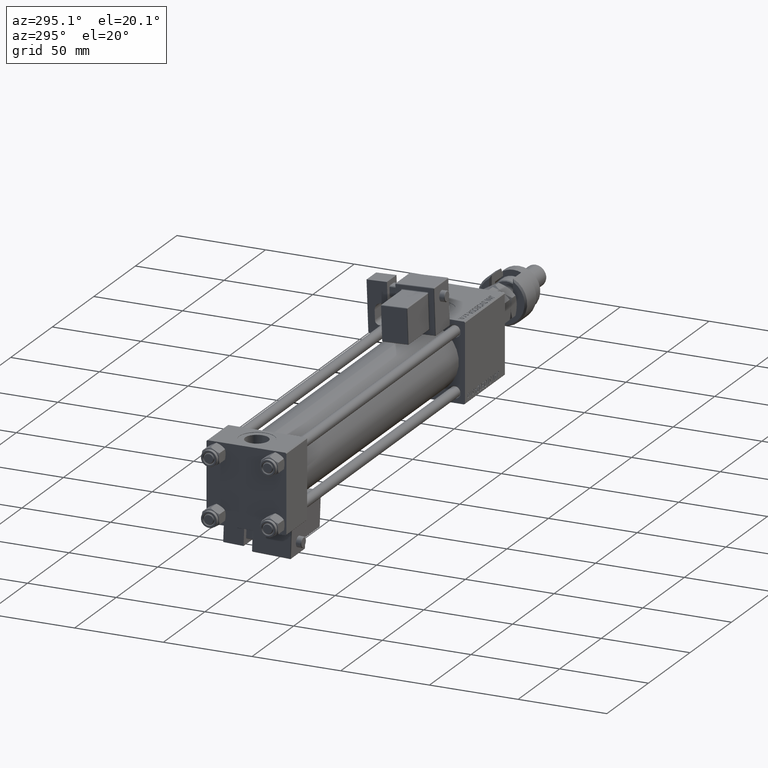
[diagram: clean part render]
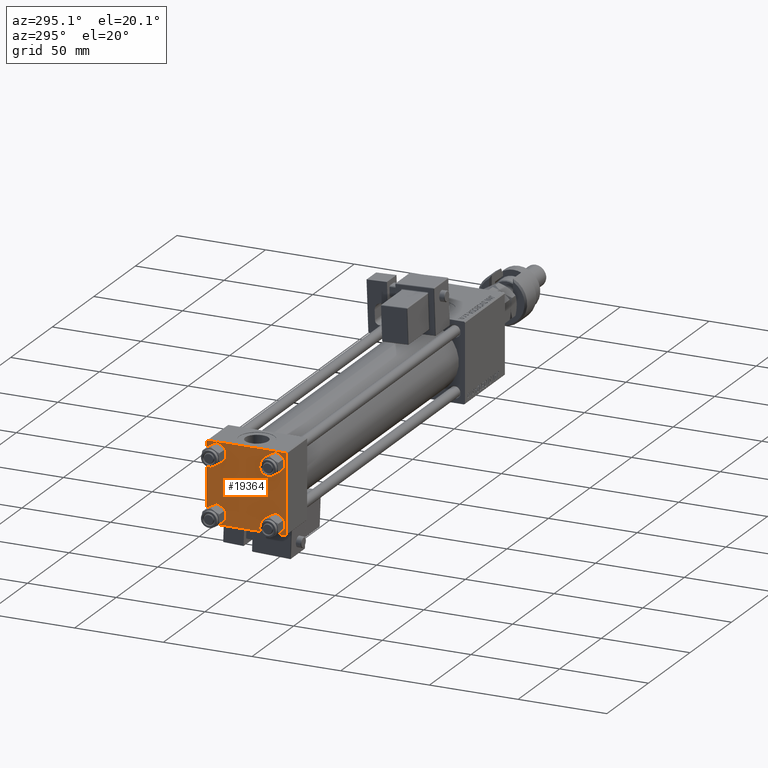
[diagram: same view with one face highlighted and labeled with its STEP entity id]
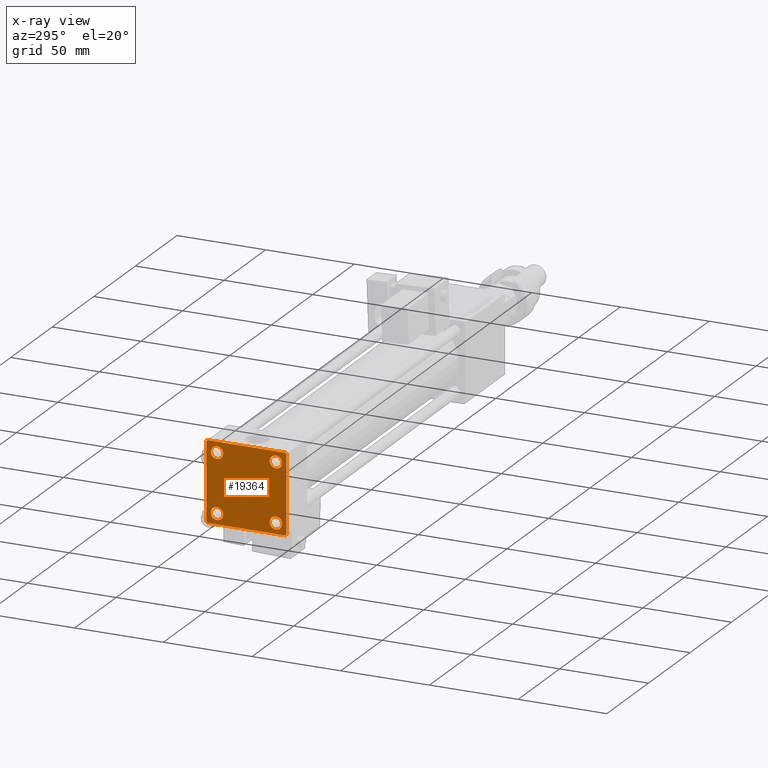
[diagram: x-ray of the same camera — body ghosted, the highlighted face saturated]
A machine part, auxiliary view. The second image highlights one B-rep face of the part: STEP entity #19364.
The next image is the same camera in x-ray: the body ghosted, the highlighted face saturated — about 0% of this face is hidden behind the body in this view.
In plain terms, the highlighted planar face has unit normal (-1, 0, 0).
Its self-contained STEP definition (entity closure, byte-faithful):
#97 = VECTOR ( 'NONE', #16491, 1000.000000000000000 ) ;
#428 = FACE_BOUND ( 'NONE', #8487, .T. ) ;
#598 = CARTESIAN_POINT ( 'NONE',  ( 0.000000000000000000, -16.59999999999999076, 20.10000000000000853 ) ) ;
#1113 = CARTESIAN_POINT ( 'NONE',  ( 0.000000000000000000, -22.50000000000000000, -21.99999999999997158 ) ) ;
#1142 = DIRECTION ( 'NONE',  ( 0.000000000000000000, -1.000000000000000000, -7.709882115452476934E-17 ) ) ;
#1306 = EDGE_CURVE ( 'NONE', #41921, #9362, #52710, .T. ) ;
#1819 = ORIENTED_EDGE ( 'NONE', *, *, #8839, .F. ) ;
#1851 = CARTESIAN_POINT ( 'NONE',  ( 0.000000000000000000, -16.59999999999999076, -20.10000000000000497 ) ) ;
#2051 = CIRCLE ( 'NONE', #52148, 3.499999999999996003 ) ;
#2531 = AXIS2_PLACEMENT_3D ( 'NONE', #6117, #23202, #53214 ) ;
#2540 = CIRCLE ( 'NONE', #9646, 3.499999999999996003 ) ;
#2605 = VERTEX_POINT ( 'NONE', #14808 ) ;
#3458 = VECTOR ( 'NONE', #47914, 1000.000000000000000 ) ;
#4612 = CARTESIAN_POINT ( 'NONE',  ( 0.000000000000000000, -16.59999999999999076, 13.10000000000001030 ) ) ;
#4826 = ORIENTED_EDGE ( 'NONE', *, *, #42773, .T. ) ;
#4883 = DIRECTION ( 'NONE',  ( 0.000000000000000000, -0.7071067811865426878, 0.7071067811865524577 ) ) ;
#4917 = FACE_BOUND ( 'NONE', #39785, .T. ) ;
#5518 = DIRECTION ( 'NONE',  ( 1.000000000000000000, -0.000000000000000000, 0.000000000000000000 ) ) ;
#5981 = CARTESIAN_POINT ( 'NONE',  ( 0.000000000000000000, 16.59999999999999787, -16.60000000000000497 ) ) ;
#6117 = CARTESIAN_POINT ( 'NONE',  ( 0.000000000000000000, 16.59999999999999787, 16.60000000000000497 ) ) ;
#6694 = DIRECTION ( 'NONE',  ( 1.000000000000000000, -0.000000000000000000, 0.000000000000000000 ) ) ;
#6784 = AXIS2_PLACEMENT_3D ( 'NONE', #33765, #52274, #9929 ) ;
#6946 = DIRECTION ( 'NONE',  ( 0.000000000000000000, 0.7071067811865474617, -0.7071067811865474617 ) ) ;
#7906 = ORIENTED_EDGE ( 'NONE', *, *, #26821, .T. ) ;
#7988 = EDGE_CURVE ( 'NONE', #41921, #46349, #28220, .T. ) ;
#8307 = CARTESIAN_POINT ( 'NONE',  ( 0.000000000000000000, 16.59999999999999787, 16.60000000000000497 ) ) ;
#8444 = CIRCLE ( 'NONE', #12016, 3.499999999999996003 ) ;
#8487 = EDGE_LOOP ( 'NONE', ( #55128, #42108 ) ) ;
#8839 = EDGE_CURVE ( 'NONE', #38085, #25041, #37790, .T. ) ;
#9362 = VERTEX_POINT ( 'NONE', #23086 ) ;
#9536 = CARTESIAN_POINT ( 'NONE',  ( 0.000000000000000000, 22.50000000000000000, 21.99999999999999645 ) ) ;
#9646 = AXIS2_PLACEMENT_3D ( 'NONE', #43910, #5518, #39980 ) ;
#9670 = ORIENTED_EDGE ( 'NONE', *, *, #1306, .F. ) ;
#9844 = CIRCLE ( 'NONE', #10768, 3.499999999999996003 ) ;
#9929 = DIRECTION ( 'NONE',  ( -0.000000000000000000, 0.000000000000000000, 1.000000000000000000 ) ) ;
#10565 = CIRCLE ( 'NONE', #13273, 3.499999999999996003 ) ;
#10768 = AXIS2_PLACEMENT_3D ( 'NONE', #8307, #20651, #46160 ) ;
#10854 = VERTEX_POINT ( 'NONE', #42837 ) ;
#11421 = CARTESIAN_POINT ( 'NONE',  ( 0.000000000000000000, 22.24999999999999645, 22.24999999999999645 ) ) ;
#12016 = AXIS2_PLACEMENT_3D ( 'NONE', #45091, #6694, #53772 ) ;
#12227 = CARTESIAN_POINT ( 'NONE',  ( 0.000000000000000000, 22.50000000000000000, 22.50000000000000355 ) ) ;
#13169 = EDGE_CURVE ( 'NONE', #10854, #25107, #52069, .T. ) ;
#13273 = AXIS2_PLACEMENT_3D ( 'NONE', #49714, #45227, #45784 ) ;
#13603 = FACE_BOUND ( 'NONE', #50545, .T. ) ;
#13840 = LINE ( 'NONE', #17503, #51501 ) ;
#14561 = VERTEX_POINT ( 'NONE', #20641 ) ;
#14716 = CARTESIAN_POINT ( 'NONE',  ( 0.000000000000000000, 21.99999999999999289, 22.50000000000000355 ) ) ;
#14808 = CARTESIAN_POINT ( 'NONE',  ( 0.000000000000000000, 16.59999999999999787, 13.10000000000000675 ) ) ;
#14986 = ORIENTED_EDGE ( 'NONE', *, *, #21734, .T. ) ;
#15364 = EDGE_CURVE ( 'NONE', #48222, #36475, #2051, .T. ) ;
#16438 = DIRECTION ( 'NONE',  ( 0.000000000000000000, 0.000000000000000000, -1.000000000000000000 ) ) ;
#16491 = DIRECTION ( 'NONE',  ( 0.000000000000000000, 0.000000000000000000, -1.000000000000000000 ) ) ;
#16699 = PLANE ( 'NONE',  #6784 ) ;
#17503 = CARTESIAN_POINT ( 'NONE',  ( 0.000000000000000000, -22.25000000000014566, -22.24999999999984013 ) ) ;
#17607 = DIRECTION ( 'NONE',  ( -0.000000000000000000, 0.7071067811865525687, 0.7071067811865425767 ) ) ;
#17960 = EDGE_LOOP ( 'NONE', ( #37653, #19823, #36611, #4826, #1819, #7906, #9670, #20603 ) ) ;
#18754 = CARTESIAN_POINT ( 'NONE',  ( 0.000000000000000000, 22.50000000000000000, -22.49999999999999645 ) ) ;
#19043 = CARTESIAN_POINT ( 'NONE',  ( 0.000000000000000000, 16.59999999999999787, -13.10000000000000675 ) ) ;
#19364 = ADVANCED_FACE ( 'NONE', ( #51999, #428, #4917, #13603, #30670 ), #16699, .T. ) ;
#19823 = ORIENTED_EDGE ( 'NONE', *, *, #43229, .T. ) ;
#19936 = VERTEX_POINT ( 'NONE', #37284 ) ;
#20512 = ORIENTED_EDGE ( 'NONE', *, *, #33157, .T. ) ;
#20603 = ORIENTED_EDGE ( 'NONE', *, *, #7988, .T. ) ;
#20641 = CARTESIAN_POINT ( 'NONE',  ( 0.000000000000000000, -21.99999999999997158, -22.50000000000000711 ) ) ;
#20651 = DIRECTION ( 'NONE',  ( 1.000000000000000000, -0.000000000000000000, 0.000000000000000000 ) ) ;
#20933 = VERTEX_POINT ( 'NONE', #27205 ) ;
#21134 = EDGE_CURVE ( 'NONE', #52709, #25137, #2540, .T. ) ;
#21734 = EDGE_CURVE ( 'NONE', #36475, #48222, #10565, .T. ) ;
#22793 = DIRECTION ( 'NONE',  ( 0.000000000000000000, 0.000000000000000000, 1.000000000000000000 ) ) ;
#23086 = CARTESIAN_POINT ( 'NONE',  ( 0.000000000000000000, -21.99999999999997868, 22.50000000000000000 ) ) ;
#23202 = DIRECTION ( 'NONE',  ( 1.000000000000000000, -0.000000000000000000, 0.000000000000000000 ) ) ;
#24346 = ORIENTED_EDGE ( 'NONE', *, *, #13169, .T. ) ;
#24534 = ORIENTED_EDGE ( 'NONE', *, *, #15364, .T. ) ;
#25041 = VERTEX_POINT ( 'NONE', #1113 ) ;
#25107 = VERTEX_POINT ( 'NONE', #19043 ) ;
#25137 = VERTEX_POINT ( 'NONE', #36124 ) ;
#26821 = EDGE_CURVE ( 'NONE', #38085, #9362, #46771, .T. ) ;
#26964 = EDGE_CURVE ( 'NONE', #46349, #44775, #28748, .T. ) ;
#27205 = CARTESIAN_POINT ( 'NONE',  ( 0.000000000000000000, 21.99999999999999289, -22.49999999999999645 ) ) ;
#28220 = LINE ( 'NONE', #11421, #37665 ) ;
#28736 = DIRECTION ( 'NONE',  ( 1.000000000000000000, -0.000000000000000000, 0.000000000000000000 ) ) ;
#28748 = LINE ( 'NONE', #12227, #44838 ) ;
#29556 = CARTESIAN_POINT ( 'NONE',  ( 0.000000000000000000, 16.59999999999999787, -16.60000000000000497 ) ) ;
#29578 = EDGE_CURVE ( 'NONE', #2605, #19936, #9844, .T. ) ;
#29982 = VECTOR ( 'NONE', #50454, 1000.000000000000000 ) ;
#30670 = FACE_OUTER_BOUND ( 'NONE', #17960, .T. ) ;
#31925 = DIRECTION ( 'NONE',  ( 1.000000000000000000, -0.000000000000000000, 0.000000000000000000 ) ) ;
#33157 = EDGE_CURVE ( 'NONE', #25107, #10854, #34207, .T. ) ;
#33765 = CARTESIAN_POINT ( 'NONE',  ( 0.000000000000000000, 0.000000000000000000, 0.000000000000000000 ) ) ;
#34207 = CIRCLE ( 'NONE', #48519, 3.499999999999996003 ) ;
#36124 = CARTESIAN_POINT ( 'NONE',  ( 0.000000000000000000, -16.59999999999999076, -13.10000000000001030 ) ) ;
#36475 = VERTEX_POINT ( 'NONE', #4612 ) ;
#36611 = ORIENTED_EDGE ( 'NONE', *, *, #50763, .T. ) ;
#37188 = ORIENTED_EDGE ( 'NONE', *, *, #29578, .T. ) ;
#37284 = CARTESIAN_POINT ( 'NONE',  ( 0.000000000000000000, 16.59999999999999787, 20.10000000000000142 ) ) ;
#37653 = ORIENTED_EDGE ( 'NONE', *, *, #26964, .T. ) ;
#37665 = VECTOR ( 'NONE', #6946, 1000.000000000000114 ) ;
#37790 = LINE ( 'NONE', #54882, #97 ) ;
#38085 = VERTEX_POINT ( 'NONE', #41448 ) ;
#39540 = CARTESIAN_POINT ( 'NONE',  ( 0.000000000000000000, 22.50000000000000000, 22.50000000000000355 ) ) ;
#39785 = EDGE_LOOP ( 'NONE', ( #20512, #24346 ) ) ;
#39980 = DIRECTION ( 'NONE',  ( 0.000000000000000000, 0.000000000000000000, 1.000000000000000000 ) ) ;
#40086 = CARTESIAN_POINT ( 'NONE',  ( 0.000000000000000000, -16.59999999999999076, 16.60000000000000853 ) ) ;
#40113 = EDGE_LOOP ( 'NONE', ( #24534, #14986 ) ) ;
#40180 = DIRECTION ( 'NONE',  ( 1.000000000000000000, -0.000000000000000000, 0.000000000000000000 ) ) ;
#40190 = ORIENTED_EDGE ( 'NONE', *, *, #49756, .T. ) ;
#40604 = EDGE_CURVE ( 'NONE', #25137, #52709, #8444, .T. ) ;
#41019 = CIRCLE ( 'NONE', #2531, 3.499999999999996003 ) ;
#41448 = CARTESIAN_POINT ( 'NONE',  ( 0.000000000000000000, -22.50000000000000000, 22.00000000000000000 ) ) ;
#41761 = CARTESIAN_POINT ( 'NONE',  ( 0.000000000000000000, 22.25000000000014566, -22.24999999999984013 ) ) ;
#41921 = VERTEX_POINT ( 'NONE', #14716 ) ;
#42108 = ORIENTED_EDGE ( 'NONE', *, *, #21134, .T. ) ;
#42558 = CARTESIAN_POINT ( 'NONE',  ( -0.000000000000000000, -22.24999999999984013, 22.25000000000015277 ) ) ;
#42773 = EDGE_CURVE ( 'NONE', #14561, #25041, #13840, .T. ) ;
#42837 = CARTESIAN_POINT ( 'NONE',  ( 0.000000000000000000, 16.59999999999999787, -20.10000000000000142 ) ) ;
#43152 = AXIS2_PLACEMENT_3D ( 'NONE', #29556, #28736, #50345 ) ;
#43229 = EDGE_CURVE ( 'NONE', #44775, #20933, #46244, .T. ) ;
#43910 = CARTESIAN_POINT ( 'NONE',  ( 0.000000000000000000, -16.59999999999999076, -16.60000000000000853 ) ) ;
#44296 = DIRECTION ( 'NONE',  ( 0.000000000000000000, 0.000000000000000000, 1.000000000000000000 ) ) ;
#44541 = VECTOR ( 'NONE', #1142, 1000.000000000000000 ) ;
#44775 = VERTEX_POINT ( 'NONE', #51154 ) ;
#44838 = VECTOR ( 'NONE', #16438, 1000.000000000000000 ) ;
#45091 = CARTESIAN_POINT ( 'NONE',  ( 0.000000000000000000, -16.59999999999999076, -16.60000000000000853 ) ) ;
#45227 = DIRECTION ( 'NONE',  ( 1.000000000000000000, -0.000000000000000000, 0.000000000000000000 ) ) ;
#45784 = DIRECTION ( 'NONE',  ( 0.000000000000000000, 0.000000000000000000, 1.000000000000000000 ) ) ;
#46160 = DIRECTION ( 'NONE',  ( 0.000000000000000000, 0.000000000000000000, 1.000000000000000000 ) ) ;
#46244 = LINE ( 'NONE', #41761, #29982 ) ;
#46349 = VERTEX_POINT ( 'NONE', #9536 ) ;
#46771 = LINE ( 'NONE', #42558, #51120 ) ;
#47914 = DIRECTION ( 'NONE',  ( 0.000000000000000000, -1.000000000000000000, -2.312964634635742957E-16 ) ) ;
#48222 = VERTEX_POINT ( 'NONE', #598 ) ;
#48519 = AXIS2_PLACEMENT_3D ( 'NONE', #5981, #40180, #22793 ) ;
#49714 = CARTESIAN_POINT ( 'NONE',  ( 0.000000000000000000, -16.59999999999999076, 16.60000000000000853 ) ) ;
#49756 = EDGE_CURVE ( 'NONE', #19936, #2605, #41019, .T. ) ;
#50345 = DIRECTION ( 'NONE',  ( 0.000000000000000000, 0.000000000000000000, 1.000000000000000000 ) ) ;
#50454 = DIRECTION ( 'NONE',  ( -0.000000000000000000, -0.7071067811865426878, -0.7071067811865524577 ) ) ;
#50545 = EDGE_LOOP ( 'NONE', ( #40190, #37188 ) ) ;
#50763 = EDGE_CURVE ( 'NONE', #20933, #14561, #52951, .T. ) ;
#51120 = VECTOR ( 'NONE', #17607, 999.9999999999998863 ) ;
#51154 = CARTESIAN_POINT ( 'NONE',  ( 0.000000000000000000, 22.50000000000000000, -21.99999999999996803 ) ) ;
#51501 = VECTOR ( 'NONE', #4883, 1000.000000000000000 ) ;
#51999 = FACE_BOUND ( 'NONE', #40113, .T. ) ;
#52069 = CIRCLE ( 'NONE', #43152, 3.499999999999996003 ) ;
#52148 = AXIS2_PLACEMENT_3D ( 'NONE', #40086, #31925, #44296 ) ;
#52274 = DIRECTION ( 'NONE',  ( -1.000000000000000000, 0.000000000000000000, -0.000000000000000000 ) ) ;
#52709 = VERTEX_POINT ( 'NONE', #1851 ) ;
#52710 = LINE ( 'NONE', #39540, #44541 ) ;
#52951 = LINE ( 'NONE', #18754, #3458 ) ;
#53214 = DIRECTION ( 'NONE',  ( 0.000000000000000000, 0.000000000000000000, 1.000000000000000000 ) ) ;
#53772 = DIRECTION ( 'NONE',  ( 0.000000000000000000, 0.000000000000000000, 1.000000000000000000 ) ) ;
#54882 = CARTESIAN_POINT ( 'NONE',  ( 0.000000000000000000, -22.50000000000000000, 22.50000000000000000 ) ) ;
#55128 = ORIENTED_EDGE ( 'NONE', *, *, #40604, .T. ) ;